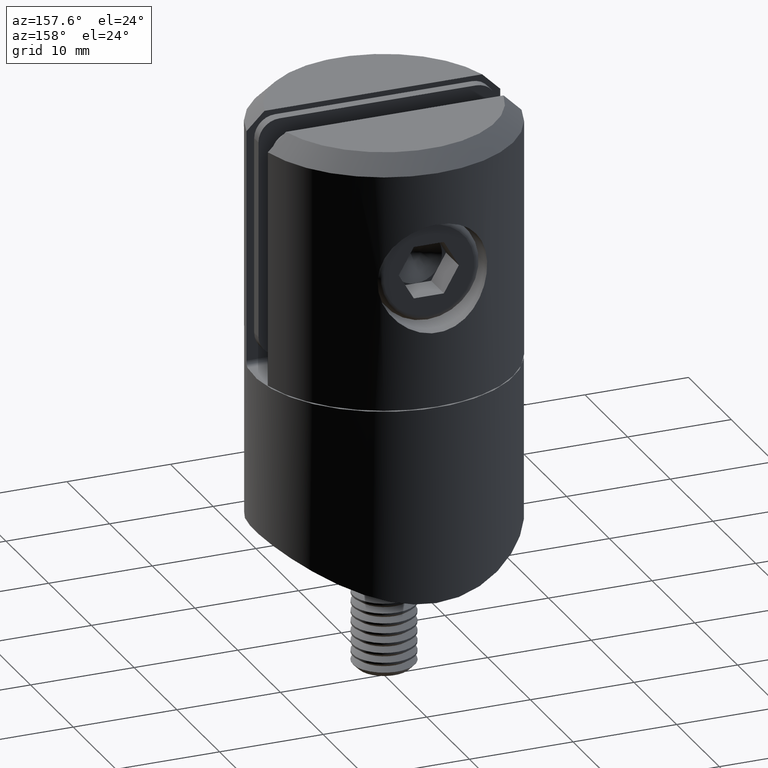
[diagram: clean part render]
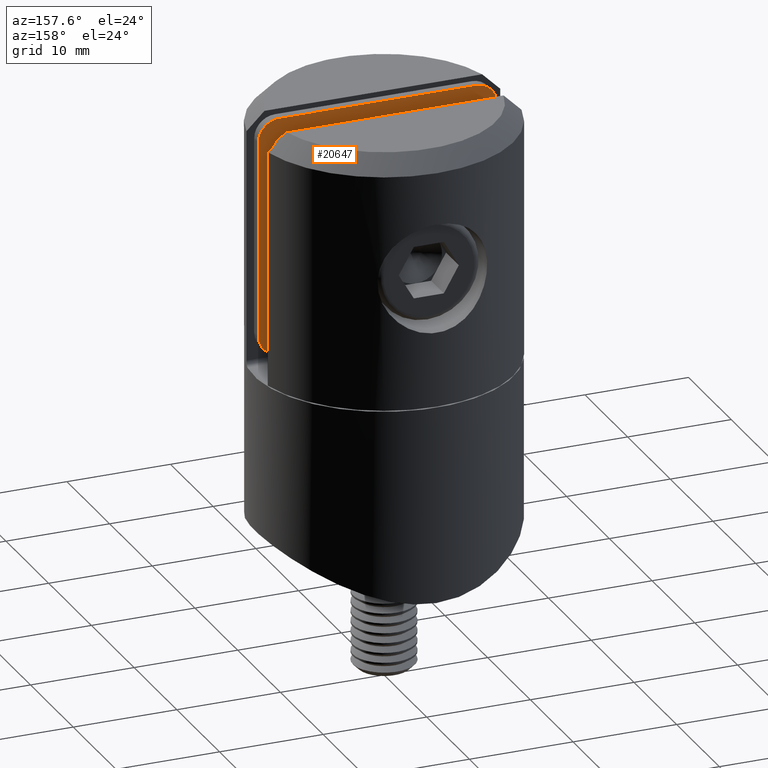
[diagram: same view with one face highlighted and labeled with its STEP entity id]
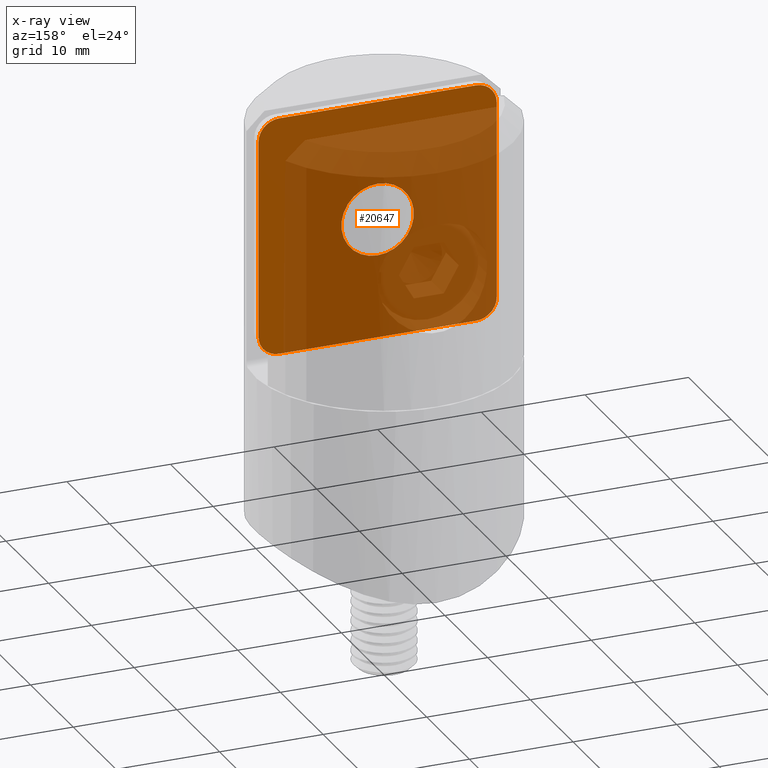
[diagram: x-ray of the same camera — body ghosted, the highlighted face saturated]
A machine part, auxiliary view. The second image highlights one B-rep face of the part: STEP entity #20647.
The next image is the same camera in x-ray: the body ghosted, the highlighted face saturated — about 78% of this face is hidden behind the body in this view.
In plain terms, the highlighted planar face has unit normal (0, 1, 0).
Its self-contained STEP definition (entity closure, byte-faithful):
#458 = DIRECTION ( 'NONE',  ( -1.000000000000000000, -0.000000000000000000, 5.279593187755499510E-16 ) ) ;
#502 = LINE ( 'NONE', #7888, #14787 ) ;
#861 = EDGE_CURVE ( 'NONE', #7591, #7591, #10555, .T. ) ;
#872 = CARTESIAN_POINT ( 'NONE',  ( -9.500000000000000000, 0.000000000000000000, 9.499999999999996447 ) ) ;
#1054 = CARTESIAN_POINT ( 'NONE',  ( -9.500000000000005329, 0.000000000000000000, -11.49999999999999112 ) ) ;
#1883 = AXIS2_PLACEMENT_3D ( 'NONE', #20741, #13743, #12217 ) ;
#2032 = FACE_OUTER_BOUND ( 'NONE', #19458, .T. ) ;
#2223 = ORIENTED_EDGE ( 'NONE', *, *, #7694, .F. ) ;
#2224 = AXIS2_PLACEMENT_3D ( 'NONE', #13022, #11525, #18316 ) ;
#2346 = DIRECTION ( 'NONE',  ( 1.000000000000000000, 0.000000000000000000, 7.542275982507857147E-17 ) ) ;
#2656 = VERTEX_POINT ( 'NONE', #21140 ) ;
#3000 = VECTOR ( 'NONE', #2346, 1000.000000000000000 ) ;
#3075 = EDGE_CURVE ( 'NONE', #7954, #18419, #12289, .T. ) ;
#3314 = ORIENTED_EDGE ( 'NONE', *, *, #4771, .T. ) ;
#3432 = ORIENTED_EDGE ( 'NONE', *, *, #7606, .F. ) ;
#3922 = AXIS2_PLACEMENT_3D ( 'NONE', #872, #12725, #21186 ) ;
#4145 = VERTEX_POINT ( 'NONE', #7659 ) ;
#4730 = CARTESIAN_POINT ( 'NONE',  ( -11.50000000000000000, 0.000000000000000000, 11.49999999999999645 ) ) ;
#4771 = EDGE_CURVE ( 'NONE', #4145, #2656, #8003, .T. ) ;
#5085 = ORIENTED_EDGE ( 'NONE', *, *, #18626, .F. ) ;
#5629 = LINE ( 'NONE', #10637, #18547 ) ;
#6192 = DIRECTION ( 'NONE',  ( 0.000000000000000000, 0.000000000000000000, -1.000000000000000000 ) ) ;
#6467 = ORIENTED_EDGE ( 'NONE', *, *, #8411, .F. ) ;
#7139 = CARTESIAN_POINT ( 'NONE',  ( 0.000000000000000000, 0.000000000000000000, 0.000000000000000000 ) ) ;
#7591 = VERTEX_POINT ( 'NONE', #10809 ) ;
#7594 = AXIS2_PLACEMENT_3D ( 'NONE', #21305, #11263, #6192 ) ;
#7606 = EDGE_CURVE ( 'NONE', #7954, #2656, #8811, .T. ) ;
#7659 = CARTESIAN_POINT ( 'NONE',  ( 11.50000000000000000, 0.000000000000000000, 9.499999999999998224 ) ) ;
#7694 = EDGE_CURVE ( 'NONE', #19539, #18419, #12519, .T. ) ;
#7697 = ORIENTED_EDGE ( 'NONE', *, *, #13479, .T. ) ;
#7888 = CARTESIAN_POINT ( 'NONE',  ( 11.50000000000000000, 0.000000000000000000, 11.49999999999999822 ) ) ;
#7954 = VERTEX_POINT ( 'NONE', #8933 ) ;
#8003 = CIRCLE ( 'NONE', #7594, 2.000000000000000000 ) ;
#8411 = EDGE_CURVE ( 'NONE', #15891, #15966, #5629, .T. ) ;
#8460 = ORIENTED_EDGE ( 'NONE', *, *, #11978, .T. ) ;
#8569 = DIRECTION ( 'NONE',  ( 0.000000000000000000, 0.000000000000000000, -1.000000000000000000 ) ) ;
#8811 = LINE ( 'NONE', #20873, #3000 ) ;
#8859 = DIRECTION ( 'NONE',  ( 0.000000000000000000, -1.000000000000000000, 0.000000000000000000 ) ) ;
#8933 = CARTESIAN_POINT ( 'NONE',  ( -9.500000000000000000, 0.000000000000000000, 11.49999999999999645 ) ) ;
#9567 = ORIENTED_EDGE ( 'NONE', *, *, #3075, .T. ) ;
#9849 = DIRECTION ( 'NONE',  ( 1.508455196501572415E-16, -0.000000000000000000, 1.000000000000000000 ) ) ;
#10555 = CIRCLE ( 'NONE', #1883, 3.499999999999999556 ) ;
#10637 = CARTESIAN_POINT ( 'NONE',  ( -11.50000000000000355, 0.000000000000000000, -11.49999999999998934 ) ) ;
#10809 = CARTESIAN_POINT ( 'NONE',  ( 0.000000000000000000, 0.000000000000000000, 3.499999999999999556 ) ) ;
#11263 = DIRECTION ( 'NONE',  ( 0.000000000000000000, -1.000000000000000000, -0.000000000000000000 ) ) ;
#11334 = DIRECTION ( 'NONE',  ( -1.508455196501571429E-16, 0.000000000000000000, -1.000000000000000000 ) ) ;
#11351 = VERTEX_POINT ( 'NONE', #17609 ) ;
#11525 = DIRECTION ( 'NONE',  ( 0.000000000000000000, -1.000000000000000000, -0.000000000000000000 ) ) ;
#11841 = AXIS2_PLACEMENT_3D ( 'NONE', #7139, #8859, #8569 ) ;
#11978 = EDGE_CURVE ( 'NONE', #15891, #11351, #20042, .T. ) ;
#12025 = ORIENTED_EDGE ( 'NONE', *, *, #861, .T. ) ;
#12217 = DIRECTION ( 'NONE',  ( 0.000000000000000000, 0.000000000000000000, 1.000000000000000000 ) ) ;
#12289 = CIRCLE ( 'NONE', #3922, 2.000000000000000000 ) ;
#12519 = LINE ( 'NONE', #4730, #20414 ) ;
#12725 = DIRECTION ( 'NONE',  ( 0.000000000000000000, -1.000000000000000000, -0.000000000000000000 ) ) ;
#13022 = CARTESIAN_POINT ( 'NONE',  ( 9.499999999999996447, 0.000000000000000000, -9.500000000000000000 ) ) ;
#13479 = EDGE_CURVE ( 'NONE', #19539, #15966, #18059, .T. ) ;
#13743 = DIRECTION ( 'NONE',  ( 0.000000000000000000, 1.000000000000000000, 0.000000000000000000 ) ) ;
#13856 = PLANE ( 'NONE',  #11841 ) ;
#13924 = EDGE_LOOP ( 'NONE', ( #12025 ) ) ;
#14636 = DIRECTION ( 'NONE',  ( 0.000000000000000000, -1.000000000000000000, -0.000000000000000000 ) ) ;
#14787 = VECTOR ( 'NONE', #11334, 1000.000000000000000 ) ;
#14869 = CARTESIAN_POINT ( 'NONE',  ( -9.500000000000003553, 0.000000000000000000, -9.499999999999987566 ) ) ;
#15891 = VERTEX_POINT ( 'NONE', #17452 ) ;
#15966 = VERTEX_POINT ( 'NONE', #1054 ) ;
#17235 = AXIS2_PLACEMENT_3D ( 'NONE', #14869, #14636, #18113 ) ;
#17452 = CARTESIAN_POINT ( 'NONE',  ( 9.499999999999994671, 0.000000000000000000, -11.50000000000000000 ) ) ;
#17609 = CARTESIAN_POINT ( 'NONE',  ( 11.49999999999999645, 0.000000000000000000, -9.500000000000000000 ) ) ;
#18059 = CIRCLE ( 'NONE', #17235, 2.000000000000000000 ) ;
#18113 = DIRECTION ( 'NONE',  ( 0.000000000000000000, 0.000000000000000000, -1.000000000000000000 ) ) ;
#18228 = CARTESIAN_POINT ( 'NONE',  ( -11.50000000000000355, 0.000000000000000000, -9.499999999999987566 ) ) ;
#18316 = DIRECTION ( 'NONE',  ( 0.000000000000000000, 0.000000000000000000, -1.000000000000000000 ) ) ;
#18419 = VERTEX_POINT ( 'NONE', #20287 ) ;
#18547 = VECTOR ( 'NONE', #458, 1000.000000000000000 ) ;
#18626 = EDGE_CURVE ( 'NONE', #4145, #11351, #502, .T. ) ;
#19458 = EDGE_LOOP ( 'NONE', ( #2223, #7697, #6467, #8460, #5085, #3314, #3432, #9567 ) ) ;
#19539 = VERTEX_POINT ( 'NONE', #18228 ) ;
#20042 = CIRCLE ( 'NONE', #2224, 2.000000000000000000 ) ;
#20287 = CARTESIAN_POINT ( 'NONE',  ( -11.50000000000000000, 0.000000000000000000, 9.499999999999996447 ) ) ;
#20414 = VECTOR ( 'NONE', #9849, 1000.000000000000000 ) ;
#20647 = ADVANCED_FACE ( 'NONE', ( #2032, #21607 ), #13856, .T. ) ;
#20741 = CARTESIAN_POINT ( 'NONE',  ( 0.000000000000000000, 0.000000000000000000, 0.000000000000000000 ) ) ;
#20873 = CARTESIAN_POINT ( 'NONE',  ( -11.50000000000000000, 0.000000000000000000, 11.49999999999999645 ) ) ;
#21140 = CARTESIAN_POINT ( 'NONE',  ( 9.499999999999998224, 0.000000000000000000, 11.49999999999999822 ) ) ;
#21186 = DIRECTION ( 'NONE',  ( 0.000000000000000000, 0.000000000000000000, -1.000000000000000000 ) ) ;
#21305 = CARTESIAN_POINT ( 'NONE',  ( 9.500000000000000000, 0.000000000000000000, 9.499999999999998224 ) ) ;
#21607 = FACE_BOUND ( 'NONE', #13924, .T. ) ;